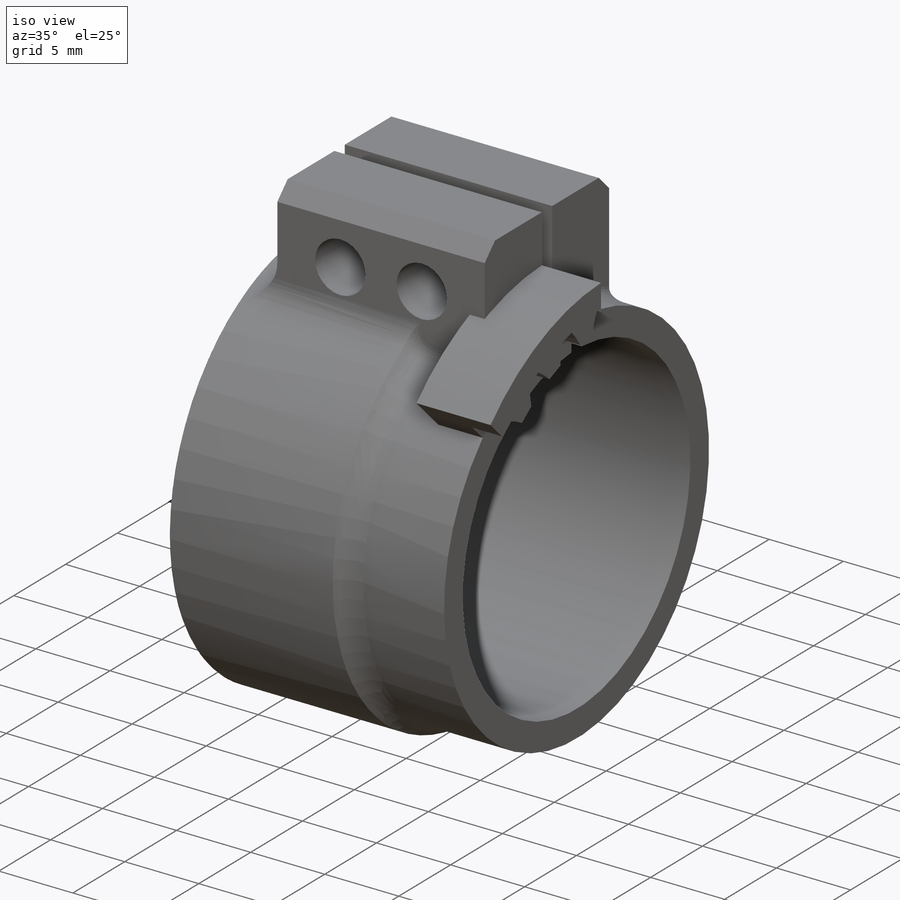
[diagram: iso view]
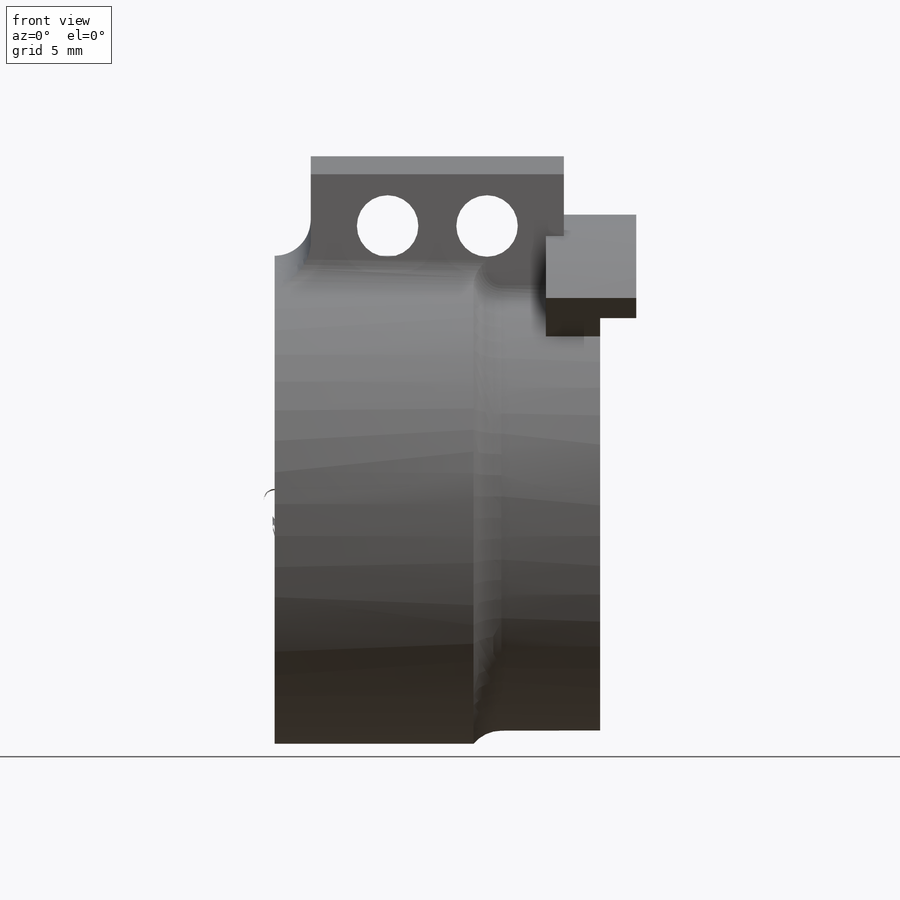
[diagram: front view]
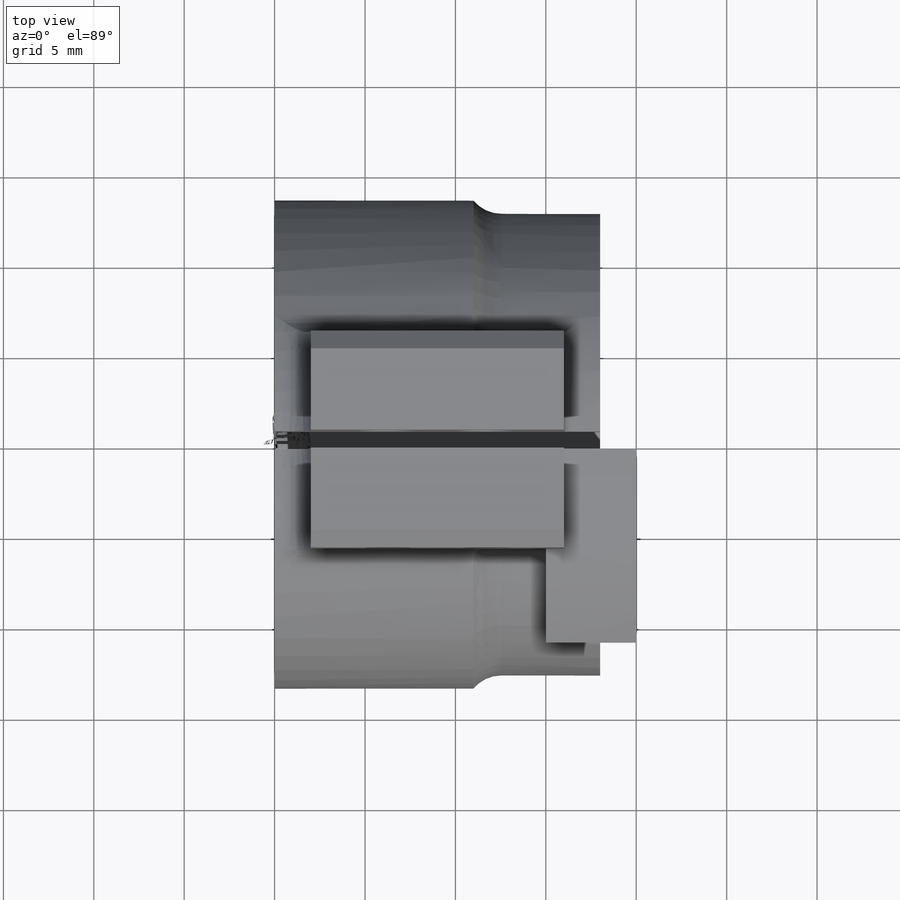
[diagram: top view]
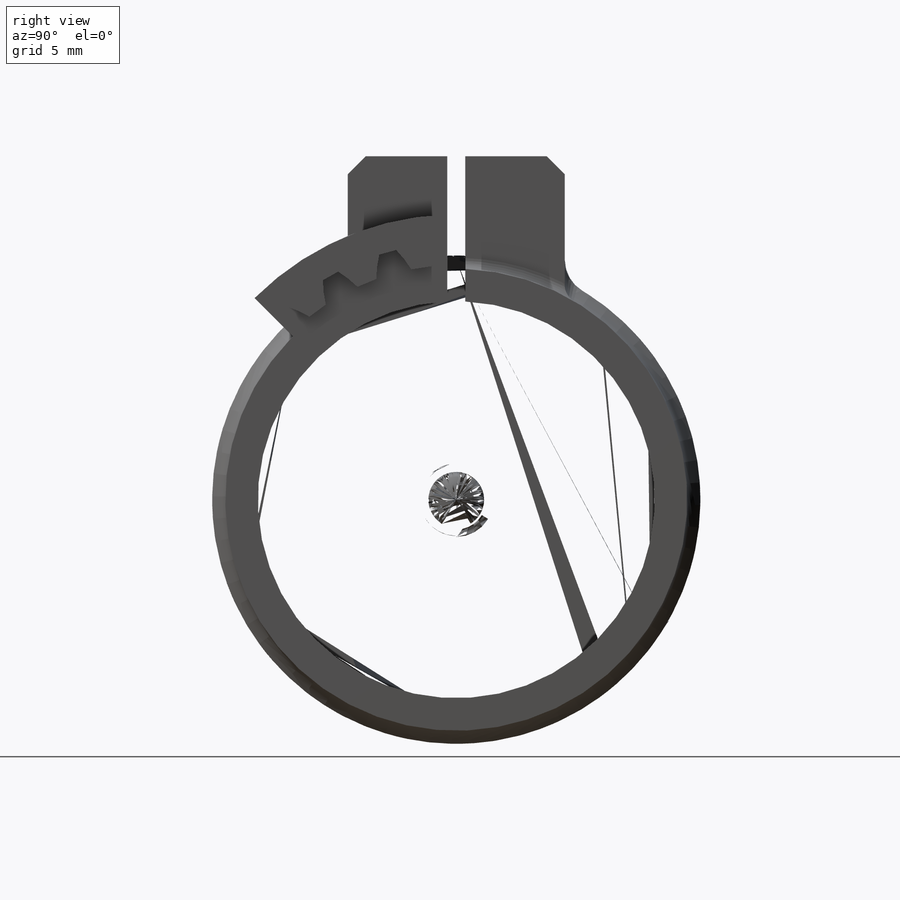
[diagram: right view]
SOLIDWORKS PART (.sldprt)
format: sldprt  version: not decoded by parser v0  size: 978,944 bytes
history: native  units: mm
features: sketch x15, fillet x6, extrude x4, cut_extrude x4, hole x3, thread x2, plane x2, material x1, revolve x1, chamfer x1, move_body x1, boolean_combine x1, mirror x1 + 1 further entry (+17 scaffold rows collapsed; 5 parser-record rows omitted)
feature tree (65):
  scaffold x17  (default folders/planes/origin — collapsed)
  material  "ABS"
  sketch  "Sketch1"  dims[c1.D1=11.0mm c1.D2=27.0mm c1.D3=18.0mm c2.D2=1.8mm c2.D1=21.95mm]
  revolve  "Revolve1"  Angle=360deg
  sketch  "Sketch6"  dims[D1=8.0mm D2=14.0mm D3=19.0mm]
  extrude  "Boss-Extrude1"  Depth=6mm
  sketch  "Sketch4"
  cut_extrude  "Cut-Extrude1"  Depth=0.5mm
  hole  "M2.5 Tapped Hole1"  Diameter=2.05mm Depth=18.775mm
  sketch  "Sketch8"  dims[D1=5.5mm]
  sketch  "Sketch9"  dims[hole-wizard template sketch: 60 standard entries collapsed; hole parameters kept: c18.Thru Tap Drill Depth=18.775mm]
  thread  "Hole Thread11"  Diameter=2.5mm  [1 undecoded]
  thread  "Hole Thread13"  Diameter=2.5mm  [1 undecoded]
  hole  "M3 Clearance Hole1"  Diameter=3.4mm Depth=20mm
  sketch  "Sketch11"
  sketch  "Sketch10"  dims[hole-wizard template sketch: 47 standard entries collapsed; hole parameters kept: c15.Hole Depth=20.0mm c15.D3=~14.816244mm c15.Drill Angle=180.0deg]
  hole  "Ø4.5 (4.5) Diameter Hole1"  Diameter=4.5mm Depth=20mm
  sketch  "Sketch16"
  sketch  "Sketch15"  dims[hole-wizard template sketch: 47 standard entries collapsed; hole parameters kept: c15.Hole Depth=20.0mm c15.D3=~14.816244mm c15.Drill Angle=180.0deg]
  chamfer  "Chamfer1"  Distance=1mm Angle=45deg
  sketch  "Sketch17"  dims[D1=1.0mm]
  extrude  "Boss-Extrude2"  Depth=1mm
  fillet  "Fillet1"  Radius=2mm
  sketch  "Sketch18"  dims[c1.D1=~18.48989mm c1.D2=1.8mm c2.D1=4.0mm c2.D3=13.8mm c2.D2=4.0mm c3.D3=4.0mm c3.D1=3.0mm c3.D2=~6.234788mm c4.D2=45.0deg]
  extrude  "Boss-Extrude3"  Depth=10mm
  "Assem1^Assem1-front"
  parser-record x5  (decoder bookkeeping rows leaked as tree rows — omitted from the tree; the rows remain in map.json)
  move_body  "Body-Move/Copy2"
  boolean_combine  "Combine2"
  plane  "Plane2"  Offset=2mm
  sketch  "Sketch27"
  cut_extrude  "Cut-Extrude6"  Depth=11mm
  plane  "Plane1"
  mirror  "Mirror1"
  sketch  "Sketch28"  dims[c1.D2=0.2mm c1.D1=0.0mm c2.D2=0.2mm]
  cut_extrude  "Cut-Extrude7"  [1 undecoded]
  sketch  "Sketch29"  dims[D1=27.0mm D2=1.0mm D3=~1.225857mm]
  extrude  "Boss-Extrude4"  Depth=11mm
  sketch  "Sketch30"  dims[c1.D1=4.5mm c1.D2=4.5mm c2.D1=0.55mm]
  cut_extrude  "Cut-Extrude8"  [1 undecoded]
  fillet  "Fillet5"  Radius=0.6mm
  fillet  "Fillet6"  Radius=2mm
  fillet  "Fillet7"  Radius=2mm
  fillet  "Fillet8"  Radius=2mm
  fillet  "Fillet9"  Radius=1mm
decode coverage: 30 of 39 modeling features carry decoded parameters; 1 rows unclassified (native names shown)
note: ~ marks probable driven/reference dimensions
note: 4 parameter values undecoded
note: suppression state not decoded; provenance and decode notes live in map.json
